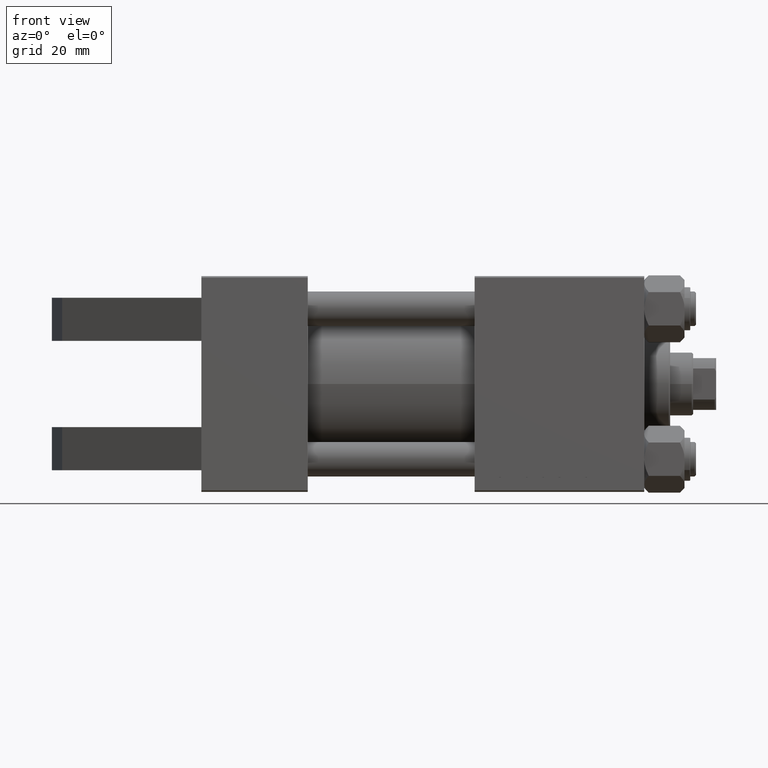
[diagram: clean part render]
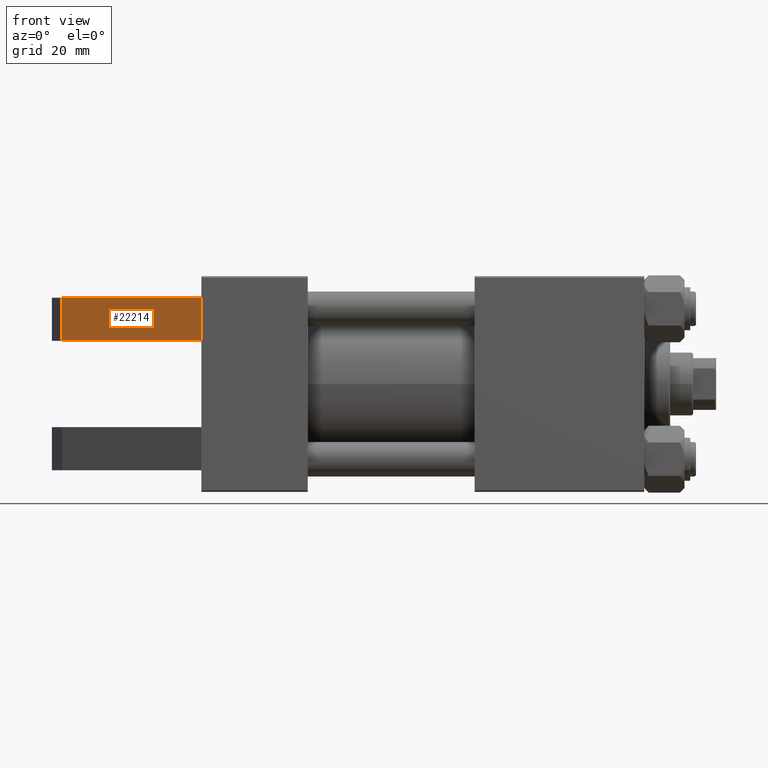
[diagram: same view with one face highlighted and labeled with its STEP entity id]
A machine part, front view. The second image highlights one B-rep face of the part: STEP entity #22214.
In plain terms, the highlighted planar face has unit normal (-0.4566, -0.8897, -0).
Its self-contained STEP definition (entity closure, byte-faithful):
#36 = VECTOR ( 'NONE', #49067, 1000.000000000000000 ) ;
#863 = CARTESIAN_POINT ( 'NONE',  ( 0.000000000000000000, -30.00000000000000000, -37.50000000000000711 ) ) ;
#914 = DIRECTION ( 'NONE',  ( -0.8896669897448514774, 0.000000000000000000, 0.4566099510066927158 ) ) ;
#1131 = VECTOR ( 'NONE', #27397, 1000.000000000000000 ) ;
#2431 = CARTESIAN_POINT ( 'NONE',  ( 0.000000000000000000, -15.00000000000000000, -37.50000000000000711 ) ) ;
#4449 = CARTESIAN_POINT ( 'NONE',  ( -48.43732805352595960, -30.00000000000000000, -12.64017464471899110 ) ) ;
#5152 = LINE ( 'NONE', #46873, #11602 ) ;
#5432 = DIRECTION ( 'NONE',  ( -0.4566099510066927158, 0.000000000000000000, -0.8896669897448514774 ) ) ;
#7400 = VERTEX_POINT ( 'NONE', #31400 ) ;
#7837 = VERTEX_POINT ( 'NONE', #2431 ) ;
#8069 = EDGE_CURVE ( 'NONE', #7837, #7400, #5152, .T. ) ;
#8086 = ORIENTED_EDGE ( 'NONE', *, *, #10777, .T. ) ;
#10777 = EDGE_CURVE ( 'NONE', #13942, #13514, #39700, .T. ) ;
#10793 = ORIENTED_EDGE ( 'NONE', *, *, #8069, .F. ) ;
#11592 = EDGE_CURVE ( 'NONE', #13942, #7837, #33450, .T. ) ;
#11602 = VECTOR ( 'NONE', #36292, 1000.000000000000000 ) ;
#12146 = ORIENTED_EDGE ( 'NONE', *, *, #11592, .F. ) ;
#13002 = EDGE_LOOP ( 'NONE', ( #10793, #12146, #8086, #27818 ) ) ;
#13514 = VERTEX_POINT ( 'NONE', #39898 ) ;
#13942 = VERTEX_POINT ( 'NONE', #863 ) ;
#18639 = LINE ( 'NONE', #33708, #36 ) ;
#22214 = ADVANCED_FACE ( 'NONE', ( #35568 ), #39844, .T. ) ;
#27397 = DIRECTION ( 'NONE',  ( -0.8896669897448514774, 0.000000000000000000, 0.4566099510066927158 ) ) ;
#27545 = EDGE_CURVE ( 'NONE', #13514, #7400, #18639, .T. ) ;
#27646 = CARTESIAN_POINT ( 'NONE',  ( -48.43732805352595960, -30.00000000000000000, -12.64017464471899110 ) ) ;
#27818 = ORIENTED_EDGE ( 'NONE', *, *, #27545, .T. ) ;
#29550 = AXIS2_PLACEMENT_3D ( 'NONE', #4449, #5432, #914 ) ;
#31400 = CARTESIAN_POINT ( 'NONE',  ( -48.43732805352595960, -15.00000000000000000, -12.64017464471899110 ) ) ;
#33199 = CARTESIAN_POINT ( 'NONE',  ( 0.000000000000000000, -30.00000000000000000, -37.50000000000000711 ) ) ;
#33450 = LINE ( 'NONE', #33199, #41256 ) ;
#33708 = CARTESIAN_POINT ( 'NONE',  ( -48.43732805352595960, -30.00000000000000000, -12.64017464471899110 ) ) ;
#35568 = FACE_OUTER_BOUND ( 'NONE', #13002, .T. ) ;
#36292 = DIRECTION ( 'NONE',  ( -0.8896669897448514774, 0.000000000000000000, 0.4566099510066927158 ) ) ;
#39700 = LINE ( 'NONE', #27646, #1131 ) ;
#39844 = PLANE ( 'NONE',  #29550 ) ;
#39898 = CARTESIAN_POINT ( 'NONE',  ( -48.43732805352595960, -30.00000000000000000, -12.64017464471899110 ) ) ;
#40995 = DIRECTION ( 'NONE',  ( -0.000000000000000000, 1.000000000000000000, -0.000000000000000000 ) ) ;
#41256 = VECTOR ( 'NONE', #40995, 1000.000000000000000 ) ;
#46873 = CARTESIAN_POINT ( 'NONE',  ( -48.43732805352595960, -15.00000000000000000, -12.64017464471899110 ) ) ;
#49067 = DIRECTION ( 'NONE',  ( -0.000000000000000000, 1.000000000000000000, -0.000000000000000000 ) ) ;